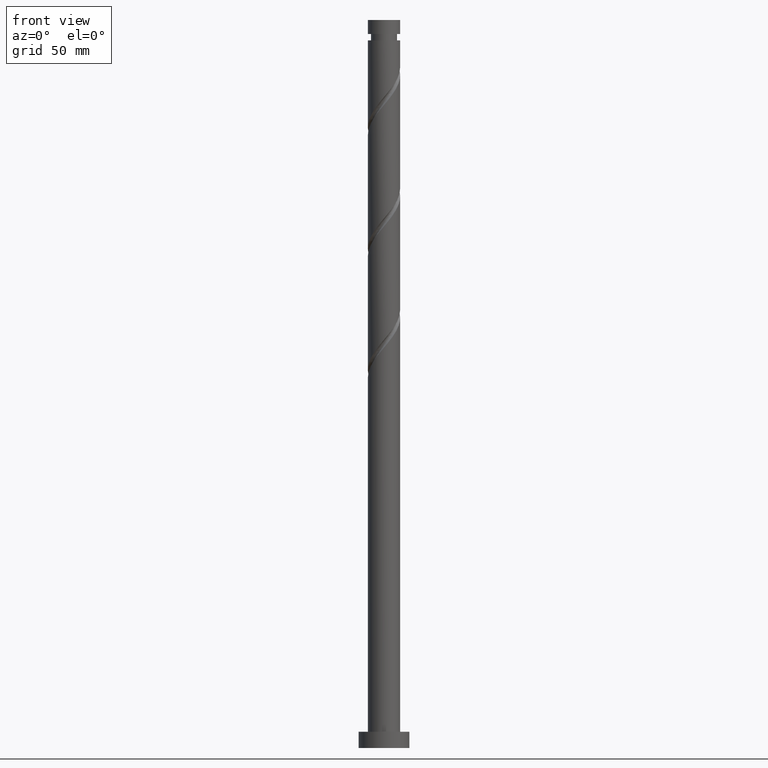
[diagram: clean part render]
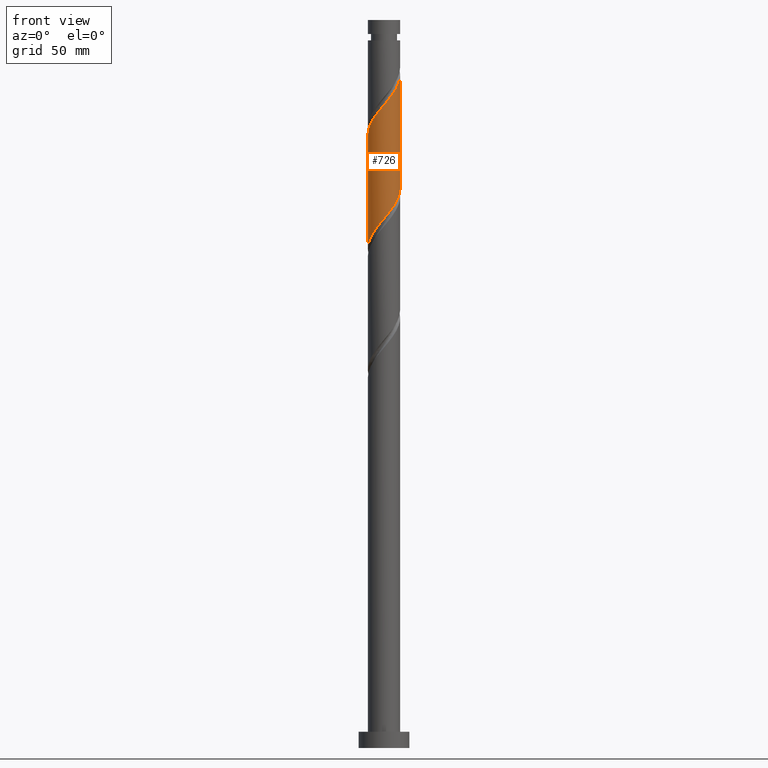
[diagram: same view with one face highlighted and labeled with its STEP entity id]
A machine part, front view. The second image highlights one B-rep face of the part: STEP entity #726.
In plain terms, the highlighted cylindrical surface (edge-blend (fillet) strip) has radius 7 mm, axis along (-0, -0, -1).
Its self-contained STEP definition (entity closure, byte-faithful):
#15 = CARTESIAN_POINT ( 'NONE',  ( 2.884551041528023774, -6.378037730275649686, 281.8118950615575500 ) ) ;
#44 = CARTESIAN_POINT ( 'NONE',  ( 6.978995026134502844, -0.9569183889397390175, 290.2493950615576637 ) ) ;
#69 = CARTESIAN_POINT ( 'NONE',  ( 7.000000000000002665, -3.552334098123264735E-15, 242.2364121394637095 ) ) ;
#79 = CARTESIAN_POINT ( 'NONE',  ( 5.576254016389050605, -4.231476237048367395, 236.8118950615576352 ) ) ;
#88 = CARTESIAN_POINT ( 'NONE',  ( -2.884551041528022886, -6.378037730275639916, 225.5618950615576352 ) ) ;
#131 = AXIS2_PLACEMENT_3D ( 'NONE', #551, #1900, #1466 ) ;
#160 = CARTESIAN_POINT ( 'NONE',  ( 4.859769170704725916, -5.099481148643362438, 284.6243950615576068 ) ) ;
#176 =( BOUNDED_CURVE ( )  B_SPLINE_CURVE ( 2, ( #69, #1572, #664, #527, #827, #1430, #79, #1252, #385, #674, #1283, #1866, #1838, #1139, #1584, #837, #1440, #499, #88, #682, #1875, #1919, #245, #1733, #550, #1608, #1155, #1306, #1891, #1181, #864 ),
 .UNSPECIFIED., .F., .T. ) 
 B_SPLINE_CURVE_WITH_KNOTS ( ( 3, 2, 2, 2, 2, 2, 2, 2, 2, 2, 2, 2, 2, 2, 2, 3 ),
 ( 0.5545303401299220836, 0.5625000000000000000, 0.5714285714285713969, 0.5803571428571429047, 0.5892857142857143016, 0.5982142857142856984, 0.6071428571428570953, 0.6160714285714286031, 0.6250000000000000000, 0.6339285714285713969, 0.6428571428571429047, 0.6517857142857143016, 0.6607142857142856984, 0.6696428571428570953, 0.6785714285714286031, 0.6795303401299220836 ),
 .UNSPECIFIED. ) 
 CURVE ( )  GEOMETRIC_REPRESENTATION_ITEM ( )  RATIONAL_B_SPLINE_CURVE ( ( 0.9079949616361933096, 0.9039886423360564693, 0.9090909090909231605, 0.9033747362665982550, 0.9090909090909231605, 0.9033747362665982550, 0.9090909090909231605, 0.9033747362665982550, 0.9090909090909231605, 0.9033747362665982550, 0.9090909090909231605, 0.9033747362665982550, 0.9090909090909231605, 0.9033747362665982550, 0.9090909090909231605, 0.9033747362665982550, 0.9090909090909231605, 0.9033747362665982550, 0.9090909090909231605, 0.9033747362665982550, 0.9090909090909231605, 0.9033747362665982550, 0.9090909090909231605, 0.9033747362665982550, 0.9090909090909231605, 0.9033747362665982550, 0.9090909090909231605, 0.9033747362665982550, 0.9090909090909231605, 0.9084770030214649461, 0.9079949616361933096 ) ) 
 REPRESENTATION_ITEM ( '' )  );
#181 = CARTESIAN_POINT ( 'NONE',  ( 6.997973224858992758, -0.1684361723526152932, 291.1868950615576637 ) ) ;
#200 = CARTESIAN_POINT ( 'NONE',  ( 2.165918779664035121, -6.703048576416539284, 280.8743950615576068 ) ) ;
#245 = CARTESIAN_POINT ( 'NONE',  ( -5.366217544937103234, -4.494853641711733516, 221.8118950615576352 ) ) ;
#308 = CARTESIAN_POINT ( 'NONE',  ( 1.392982411949271970, -6.860000000000010978, 279.9368950615576637 ) ) ;
#311 = ORIENTED_EDGE ( 'NONE', *, *, #1126, .T. ) ;
#332 = DIRECTION ( 'NONE',  ( -0.000000000000000000, -0.000000000000000000, -1.000000000000000000 ) ) ;
#385 = CARTESIAN_POINT ( 'NONE',  ( 4.494853641711733516, -5.366217544937103234, 234.9368950615576637 ) ) ;
#458 = VERTEX_POINT ( 'NONE', #1790 ) ;
#466 = CARTESIAN_POINT ( 'NONE',  ( -7.000000000000002665, 2.895600063176107384E-15, 215.9864121394636811 ) ) ;
#467 = CARTESIAN_POINT ( 'NONE',  ( 5.366217544937109452, -4.494853641711742398, 285.5618950615576068 ) ) ;
#474 = LINE ( 'NONE', #1385, #688 ) ;
#481 = CARTESIAN_POINT ( 'NONE',  ( 7.000000000000011546, -8.358433172054687072E-16, 291.3873779836515610 ) ) ;
#499 = CARTESIAN_POINT ( 'NONE',  ( -2.165918779664034677, -6.703048576416528626, 226.4993950615576068 ) ) ;
#527 = CARTESIAN_POINT ( 'NONE',  ( 6.703048576416528626, -2.165918779664034677, 239.6243950615576921 ) ) ;
#550 = CARTESIAN_POINT ( 'NONE',  ( -6.231874297749640412, -3.188062536564721494, 219.9368950615576068 ) ) ;
#551 = CARTESIAN_POINT ( 'NONE',  ( 0.000000000000000000, 0.000000000000000000, 315.0000000000000000 ) ) ;
#581 = CARTESIAN_POINT ( 'NONE',  ( 7.000000000000002665, -3.552334098123265129E-15, 242.2364121394637095 ) ) ;
#610 = CARTESIAN_POINT ( 'NONE',  ( 6.591082676329800272, -2.485898938349336174, 288.3743950615577205 ) ) ;
#664 = CARTESIAN_POINT ( 'NONE',  ( 6.860000000000001208, -1.392982411949272636, 240.5618950615576352 ) ) ;
#674 = CARTESIAN_POINT ( 'NONE',  ( 3.890226134780113476, -5.872665919169487658, 233.9993950615576352 ) ) ;
#682 = CARTESIAN_POINT ( 'NONE',  ( -3.603183303392009762, -6.053026884134752095, 224.6243950615577205 ) ) ;
#688 = VECTOR ( 'NONE', #332, 1000.000000000000000 ) ;
#726 = ADVANCED_FACE ( 'NONE', ( #729 ), #1015, .T. ) ;
#729 = FACE_OUTER_BOUND ( 'NONE', #1064, .T. ) ;
#753 = CARTESIAN_POINT ( 'NONE',  ( 6.231874297749647518, -3.188062536564728600, 287.4368950615576068 ) ) ;
#757 = VERTEX_POINT ( 'NONE', #1911 ) ;
#766 = CARTESIAN_POINT ( 'NONE',  ( -6.378037730275649686, -2.884551041528024218, 268.6868950615576637 ) ) ;
#780 = CARTESIAN_POINT ( 'NONE',  ( 7.000000000000011546, -0.08423028016474291835, 291.2870152954265563 ) ) ;
#796 = CARTESIAN_POINT ( 'NONE',  ( -5.099481148643362438, -4.859769170704725916, 271.4993950615576068 ) ) ;
#822 = ORIENTED_EDGE ( 'NONE', *, *, #1840, .F. ) ;
#827 = CARTESIAN_POINT ( 'NONE',  ( 6.378037730275639916, -2.884551041528023330, 238.6868950615576068 ) ) ;
#835 = CARTESIAN_POINT ( 'NONE',  ( -7.000000000000014211, -0.7035264706814414737, 265.9756490626151617 ) ) ;
#837 = CARTESIAN_POINT ( 'NONE',  ( -0.6200460442345108181, -7.016951423583473790, 228.3743950615576352 ) ) ;
#864 = CARTESIAN_POINT ( 'NONE',  ( -7.000000000000002665, 2.895600063176107384E-15, 215.9864121394636811 ) ) ;
#907 = CARTESIAN_POINT ( 'NONE',  ( 3.603183303392012871, -6.053026884134760088, 282.7493950615576068 ) ) ;
#929 = CARTESIAN_POINT ( 'NONE',  ( 0.6200460442345087086, -7.016951423583483560, 278.9993950615577774 ) ) ;
#939 = CARTESIAN_POINT ( 'NONE',  ( 4.231476237048371836, -5.576254016389061263, 283.6868950615576637 ) ) ;
#986 = LINE ( 'NONE', #1687, #1016 ) ;
#1015 = CYLINDRICAL_SURFACE ( 'NONE', #131, 7.000000000000000888 ) ;
#1016 = VECTOR ( 'NONE', #1119, 1000.000000000000000 ) ;
#1064 = EDGE_LOOP ( 'NONE', ( #1428, #1490, #311, #822 ) ) ;
#1080 = CARTESIAN_POINT ( 'NONE',  ( 5.872665919169493876, -3.890226134780121914, 286.4993950615576637 ) ) ;
#1119 = DIRECTION ( 'NONE',  ( -0.000000000000000000, -0.000000000000000000, -1.000000000000000000 ) ) ;
#1126 = EDGE_CURVE ( 'NONE', #458, #1365, #474, .T. ) ;
#1139 = CARTESIAN_POINT ( 'NONE',  ( 0.9569183889397343545, -6.978995026134492186, 230.2493950615576352 ) ) ;
#1155 = CARTESIAN_POINT ( 'NONE',  ( -6.785038851232141788, -1.721408663644533377, 218.0618950615576068 ) ) ;
#1181 = CARTESIAN_POINT ( 'NONE',  ( -7.000000000000002665, -0.08423028016473038670, 216.0867748276887710 ) ) ;
#1222 = CARTESIAN_POINT ( 'NONE',  ( -5.576254016389061263, -4.231476237048371836, 270.5618950615576637 ) ) ;
#1235 = CARTESIAN_POINT ( 'NONE',  ( -3.890226134780120582, -5.872665919169493876, 273.3743950615577205 ) ) ;
#1241 = EDGE_CURVE ( 'NONE', #458, #757, #1846, .T. ) ;
#1247 = CARTESIAN_POINT ( 'NONE',  ( -6.053026884134760088, -3.603183303392013315, 269.6243950615576637 ) ) ;
#1252 = CARTESIAN_POINT ( 'NONE',  ( 5.099481148643351780, -4.859769170704723251, 235.8743950615576637 ) ) ;
#1283 = CARTESIAN_POINT ( 'NONE',  ( 3.188062536564720606, -6.231874297749640412, 233.0618950615576921 ) ) ;
#1306 = CARTESIAN_POINT ( 'NONE',  ( -6.978995026134492186, -0.9569183889397347986, 217.1243950615576637 ) ) ;
#1363 = CARTESIAN_POINT ( 'NONE',  ( -6.703048576416539284, -2.165918779664035121, 267.7493950615576637 ) ) ;
#1365 = VERTEX_POINT ( 'NONE', #466 ) ;
#1385 = CARTESIAN_POINT ( 'NONE',  ( -7.000000000000000888, 0.000000000000000000, 315.0000000000000000 ) ) ;
#1401 = CARTESIAN_POINT ( 'NONE',  ( -2.485898938349336174, -6.591082676329800272, 275.2493950615576068 ) ) ;
#1428 = ORIENTED_EDGE ( 'NONE', *, *, #1724, .F. ) ;
#1430 = CARTESIAN_POINT ( 'NONE',  ( 6.053026884134751207, -3.603183303392010206, 237.7493950615576068 ) ) ;
#1438 = CARTESIAN_POINT ( 'NONE',  ( -6.860000000000010978, -1.392982411949271970, 266.8118950615576068 ) ) ;
#1440 = CARTESIAN_POINT ( 'NONE',  ( -1.392982411949272192, -6.860000000000001208, 227.4368950615576637 ) ) ;
#1466 = DIRECTION ( 'NONE',  ( -1.000000000000000000, 0.000000000000000000, 0.000000000000000000 ) ) ;
#1490 = ORIENTED_EDGE ( 'NONE', *, *, #1241, .F. ) ;
#1545 = CARTESIAN_POINT ( 'NONE',  ( -0.1684361723526149324, -6.997973224858992758, 278.0618950615576068 ) ) ;
#1572 = CARTESIAN_POINT ( 'NONE',  ( 7.000000000000000888, -0.7035264706814527980, 241.3981410605000804 ) ) ;
#1582 = CARTESIAN_POINT ( 'NONE',  ( -7.000000000000011546, 0.000000000000000000, 265.1373779836515610 ) ) ;
#1584 = CARTESIAN_POINT ( 'NONE',  ( 0.1684361723526119348, -6.997973224858983876, 229.3118950615576352 ) ) ;
#1608 = CARTESIAN_POINT ( 'NONE',  ( -6.591082676329788725, -2.485898938349330400, 218.9993950615576637 ) ) ;
#1650 = CARTESIAN_POINT ( 'NONE',  ( -3.188062536564728155, -6.231874297749647518, 274.3118950615576068 ) ) ;
#1661 = CARTESIAN_POINT ( 'NONE',  ( 6.785038851232150670, -1.721408663644537151, 289.3118950615576068 ) ) ;
#1680 = CARTESIAN_POINT ( 'NONE',  ( -0.9569183889397385734, -6.978995026134504620, 277.1243950615575500 ) ) ;
#1687 = CARTESIAN_POINT ( 'NONE',  ( 7.000000000000000888, 8.572527594031474176E-16, 315.0000000000000000 ) ) ;
#1724 = EDGE_CURVE ( 'NONE', #757, #1862, #986, .T. ) ;
#1733 = CARTESIAN_POINT ( 'NONE',  ( -5.872665919169487658, -3.890226134780113476, 220.8743950615576352 ) ) ;
#1790 = CARTESIAN_POINT ( 'NONE',  ( -7.000000000000011546, 0.000000000000000000, 265.1373779836515610 ) ) ;
#1811 = CARTESIAN_POINT ( 'NONE',  ( -4.494853641711742398, -5.366217544937112116, 272.4368950615576637 ) ) ;
#1821 = CARTESIAN_POINT ( 'NONE',  ( -1.721408663644536707, -6.785038851232150670, 276.1868950615576637 ) ) ;
#1838 = CARTESIAN_POINT ( 'NONE',  ( 1.721408663644532266, -6.785038851232141788, 231.1868950615576352 ) ) ;
#1840 = EDGE_CURVE ( 'NONE', #1862, #1365, #176, .T. ) ;
#1846 =( BOUNDED_CURVE ( )  B_SPLINE_CURVE ( 2, ( #1582, #835, #1438, #1363, #766, #1247, #1222, #796, #1811, #1235, #1650, #1401, #1821, #1680, #1545, #929, #308, #200, #15, #907, #939, #160, #467, #1080, #753, #610, #1661, #44, #181, #780, #481 ),
 .UNSPECIFIED., .F., .T. ) 
 B_SPLINE_CURVE_WITH_KNOTS ( ( 3, 2, 2, 2, 2, 2, 2, 2, 2, 2, 2, 2, 2, 2, 2, 3 ),
 ( 0.5545303401299219725, 0.5625000000000000000, 0.5714285714285713969, 0.5803571428571427937, 0.5892857142857143016, 0.5982142857142856984, 0.6071428571428572063, 0.6160714285714286031, 0.6250000000000000000, 0.6339285714285713969, 0.6428571428571427937, 0.6517857142857143016, 0.6607142857142856984, 0.6696428571428572063, 0.6785714285714286031, 0.6795303401299219725 ),
 .UNSPECIFIED. ) 
 CURVE ( )  GEOMETRIC_REPRESENTATION_ITEM ( )  RATIONAL_B_SPLINE_CURVE ( ( 0.9079949616361995268, 0.9039886423360624645, 0.9090909090909291557, 0.9033747362666042502, 0.9090909090909291557, 0.9033747362666042502, 0.9090909090909291557, 0.9033747362666042502, 0.9090909090909291557, 0.9033747362666042502, 0.9090909090909291557, 0.9033747362666042502, 0.9090909090909291557, 0.9033747362666042502, 0.9090909090909291557, 0.9033747362666042502, 0.9090909090909291557, 0.9033747362666042502, 0.9090909090909291557, 0.9033747362666042502, 0.9090909090909291557, 0.9033747362666042502, 0.9090909090909291557, 0.9033747362666042502, 0.9090909090909291557, 0.9033747362666042502, 0.9090909090909291557, 0.9033747362666042502, 0.9090909090909291557, 0.9084770030214710523, 0.9079949616361995268 ) ) 
 REPRESENTATION_ITEM ( '' )  );
#1862 = VERTEX_POINT ( 'NONE', #581 ) ;
#1866 = CARTESIAN_POINT ( 'NONE',  ( 2.485898938349330400, -6.591082676329788725, 232.1243950615576068 ) ) ;
#1875 = CARTESIAN_POINT ( 'NONE',  ( -4.231476237048366507, -5.576254016389052381, 223.6868950615576068 ) ) ;
#1891 = CARTESIAN_POINT ( 'NONE',  ( -6.997973224858983876, -0.1684361723526123789, 216.1868950615576352 ) ) ;
#1900 = DIRECTION ( 'NONE',  ( -0.000000000000000000, -0.000000000000000000, -1.000000000000000000 ) ) ;
#1911 = CARTESIAN_POINT ( 'NONE',  ( 7.000000000000011546, -8.358433172054687072E-16, 291.3873779836516178 ) ) ;
#1919 = CARTESIAN_POINT ( 'NONE',  ( -4.859769170704723251, -5.099481148643351780, 222.7493950615576352 ) ) ;